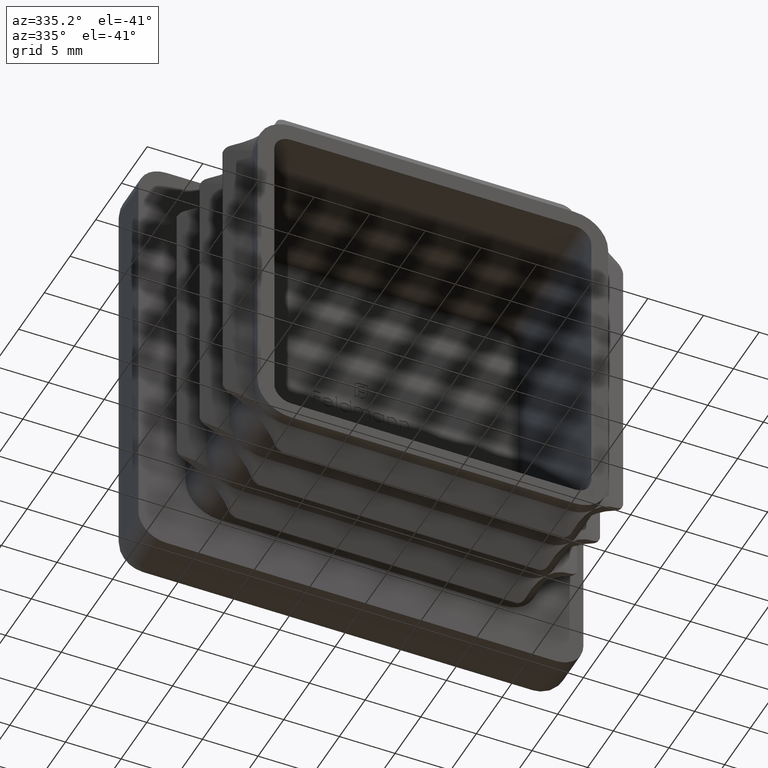
[diagram: clean part render]
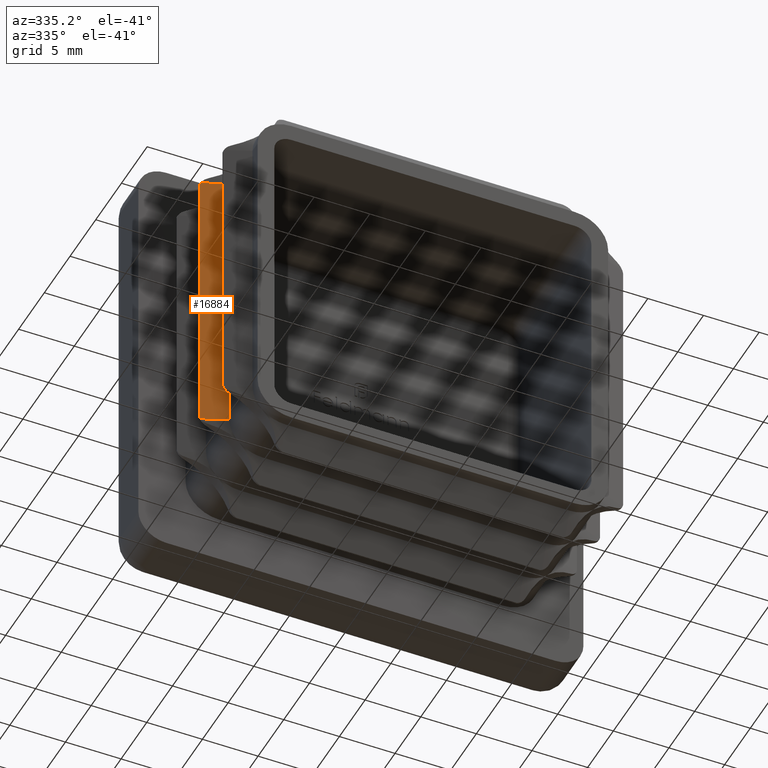
[diagram: same view with one face highlighted and labeled with its STEP entity id]
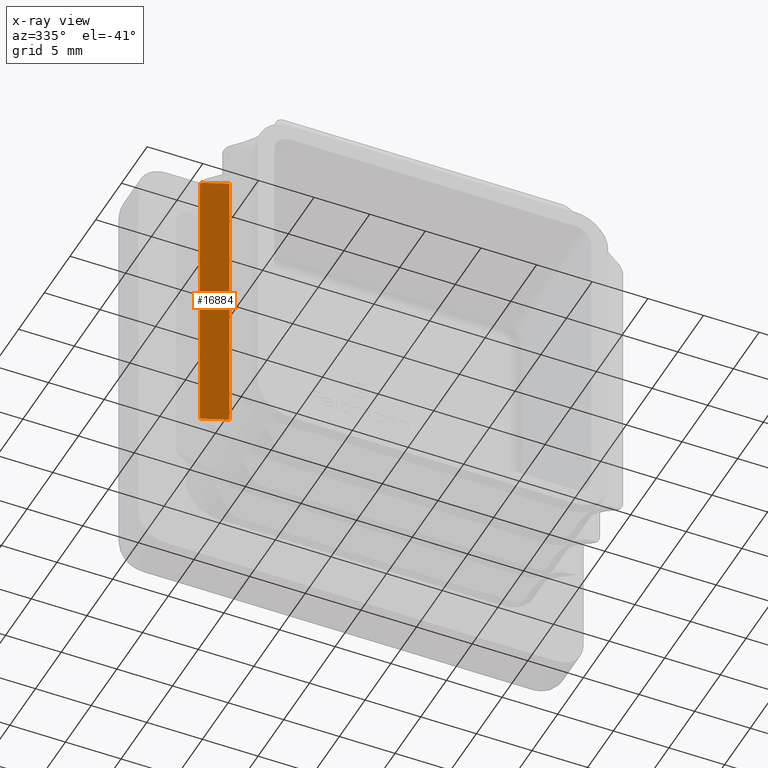
[diagram: x-ray of the same camera — body ghosted, the highlighted face saturated]
A machine part, auxiliary view. The second image highlights one B-rep face of the part: STEP entity #16884.
The next image is the same camera in x-ray: the body ghosted, the highlighted face saturated — about 0% of this face is hidden behind the body in this view.
In plain terms, the highlighted planar face has unit normal (0.3772, 0.9261, 0).
Its self-contained STEP definition (entity closure, byte-faithful):
#148 = EDGE_CURVE ( 'NONE', #3976, #7961, #17020, .T. ) ;
#1445 =( BOUNDED_CURVE ( )  B_SPLINE_CURVE ( 3, ( #1613, #13468, #21619, #8088 ),
 .UNSPECIFIED., .F., .T. ) 
 B_SPLINE_CURVE_WITH_KNOTS ( ( 4, 4 ),
 ( 2.713623046955953022, 2.891379701795118606 ),
 .UNSPECIFIED. ) 
 CURVE ( )  GEOMETRIC_REPRESENTATION_ITEM ( )  RATIONAL_B_SPLINE_CURVE ( ( 1.000000000000000000, 0.9973686138443117466, 0.9973686138443117466, 1.000000000000000000 ) ) 
 REPRESENTATION_ITEM ( '' )  );
#1613 = CARTESIAN_POINT ( 'NONE',  ( -17.90981028720148061, -7.620356254773422044, 12.75000000000000000 ) ) ;
#2490 = VERTEX_POINT ( 'NONE', #20494 ) ;
#2973 = CARTESIAN_POINT ( 'NONE',  ( -15.75000000000000000, -8.500000000000019540, -12.75000000000000178 ) ) ;
#3147 = EDGE_CURVE ( 'NONE', #2490, #3976, #18820, .T. ) ;
#3581 = DIRECTION ( 'NONE',  ( -2.721134864277344162E-16, 0.000000000000000000, 1.000000000000000000 ) ) ;
#3920 = DIRECTION ( 'NONE',  ( -2.721134864277344162E-16, 0.000000000000000000, 1.000000000000000000 ) ) ;
#3976 = VERTEX_POINT ( 'NONE', #19178 ) ;
#4595 = CARTESIAN_POINT ( 'NONE',  ( -17.96885971462466003, -7.596306707551700121, 12.75000000000000000 ) ) ;
#5177 = VERTEX_POINT ( 'NONE', #16289 ) ;
#5328 = VECTOR ( 'NONE', #16050, 1000.000000000000114 ) ;
#5512 = LINE ( 'NONE', #4595, #15563 ) ;
#6229 = ORIENTED_EDGE ( 'NONE', *, *, #21488, .T. ) ;
#6808 = ORIENTED_EDGE ( 'NONE', *, *, #148, .F. ) ;
#7961 = VERTEX_POINT ( 'NONE', #13565 ) ;
#8088 = CARTESIAN_POINT ( 'NONE',  ( -17.96885971462466003, -7.596306707551701010, 12.58258589888736623 ) ) ;
#8427 = PLANE ( 'NONE',  #10913 ) ;
#9021 = CARTESIAN_POINT ( 'NONE',  ( -17.96885971462465648, -7.596306707551701010, -12.75000000000000178 ) ) ;
#9265 = EDGE_CURVE ( 'NONE', #14610, #5177, #5512, .T. ) ;
#9405 = CARTESIAN_POINT ( 'NONE',  ( -15.75000000000000711, -8.500000000000019540, 12.75000000000000178 ) ) ;
#9485 = DIRECTION ( 'NONE',  ( -0.9261341510340124206, 0.3771942924919583495, -2.520135927376551165E-16 ) ) ;
#9614 = DIRECTION ( 'NONE',  ( -0.9261341510340124206, 0.3771942924919583495, 0.000000000000000000 ) ) ;
#9732 = VERTEX_POINT ( 'NONE', #2973 ) ;
#10360 = LINE ( 'NONE', #17582, #5328 ) ;
#10913 = AXIS2_PLACEMENT_3D ( 'NONE', #20632, #21740, #9614 ) ;
#12061 = EDGE_LOOP ( 'NONE', ( #19108, #20556, #6808, #20933, #13013, #6229 ) ) ;
#12541 = VECTOR ( 'NONE', #3920, 1000.000000000000000 ) ;
#12784 = CARTESIAN_POINT ( 'NONE',  ( -17.95416890698575685, -7.602289953917577670, -12.64006869561528568 ) ) ;
#13013 = ORIENTED_EDGE ( 'NONE', *, *, #15945, .F. ) ;
#13468 = CARTESIAN_POINT ( 'NONE',  ( -17.93443383391330670, -7.610327619861038784, 12.69602062712410273 ) ) ;
#13565 = CARTESIAN_POINT ( 'NONE',  ( -17.96885971462466003, -7.596306707551701010, 12.58258589888736623 ) ) ;
#14392 = EDGE_CURVE ( 'NONE', #5177, #7961, #1445, .T. ) ;
#14610 = VERTEX_POINT ( 'NONE', #9405 ) ;
#14639 = CARTESIAN_POINT ( 'NONE',  ( -17.96885971462465648, -7.596306707551701010, -12.58258589888739110 ) ) ;
#14715 = VECTOR ( 'NONE', #3581, 1000.000000000000000 ) ;
#14812 = FACE_OUTER_BOUND ( 'NONE', #12061, .T. ) ;
#15219 = CARTESIAN_POINT ( 'NONE',  ( -15.75000000000004441, -8.500000000000000000, -12.75000000000000178 ) ) ;
#15563 = VECTOR ( 'NONE', #9485, 1000.000000000000114 ) ;
#15945 = EDGE_CURVE ( 'NONE', #9732, #2490, #10360, .T. ) ;
#16050 = DIRECTION ( 'NONE',  ( -0.9261341510340124206, 0.3771942924919583495, 0.000000000000000000 ) ) ;
#16289 = CARTESIAN_POINT ( 'NONE',  ( -17.90981028720148061, -7.620356254773422044, 12.75000000000000000 ) ) ;
#16884 = ADVANCED_FACE ( 'NONE', ( #14812 ), #8427, .F. ) ;
#17020 = LINE ( 'NONE', #9021, #12541 ) ;
#17582 = CARTESIAN_POINT ( 'NONE',  ( -17.96885971462465648, -7.596306707551700121, -12.75000000000000178 ) ) ;
#17639 = CARTESIAN_POINT ( 'NONE',  ( -17.90981028720148061, -7.620356254773419380, -12.75000000000000178 ) ) ;
#18820 =( BOUNDED_CURVE ( )  B_SPLINE_CURVE ( 3, ( #17639, #19369, #12784, #14639 ),
 .UNSPECIFIED., .F., .F. ) 
 B_SPLINE_CURVE_WITH_KNOTS ( ( 4, 4 ),
 ( 2.713623046955952134, 2.891379701795091961 ),
 .UNSPECIFIED. ) 
 CURVE ( )  GEOMETRIC_REPRESENTATION_ITEM ( )  RATIONAL_B_SPLINE_CURVE ( ( 1.000000000000000000, 0.9973686138443123017, 0.9973686138443123017, 1.000000000000000000 ) ) 
 REPRESENTATION_ITEM ( '' )  );
#19108 = ORIENTED_EDGE ( 'NONE', *, *, #9265, .T. ) ;
#19178 = CARTESIAN_POINT ( 'NONE',  ( -17.96885971462465648, -7.596306707551701010, -12.58258589888739110 ) ) ;
#19369 = CARTESIAN_POINT ( 'NONE',  ( -17.93443383391330315, -7.610327619861038784, -12.69602062712411161 ) ) ;
#19475 = LINE ( 'NONE', #15219, #14715 ) ;
#20494 = CARTESIAN_POINT ( 'NONE',  ( -17.90981028720148061, -7.620356254773419380, -12.75000000000000178 ) ) ;
#20556 = ORIENTED_EDGE ( 'NONE', *, *, #14392, .T. ) ;
#20632 = CARTESIAN_POINT ( 'NONE',  ( -17.96885971462465648, -7.596306707551700121, -12.75000000000000178 ) ) ;
#20933 = ORIENTED_EDGE ( 'NONE', *, *, #3147, .F. ) ;
#21488 = EDGE_CURVE ( 'NONE', #9732, #14610, #19475, .T. ) ;
#21619 = CARTESIAN_POINT ( 'NONE',  ( -17.95416890698576751, -7.602289953917575893, 12.64006869561526969 ) ) ;
#21740 = DIRECTION ( 'NONE',  ( 0.3771942924919583495, 0.9261341510340124206, 1.026396539906293881E-16 ) ) ;